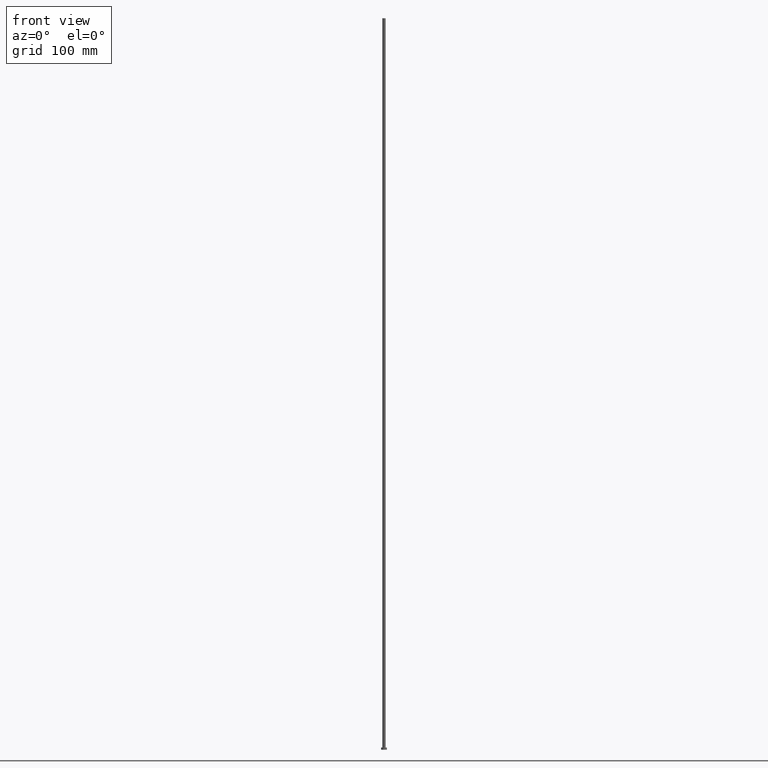
[diagram: clean part render]
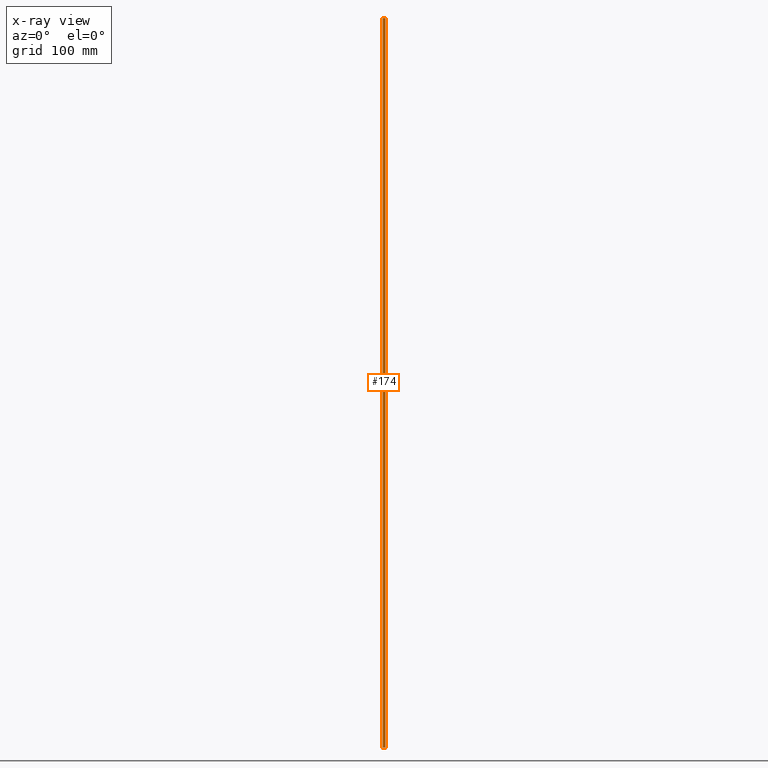
[diagram: x-ray — body ghosted, one internal face saturated and labeled with its STEP entity id]
A machine part, front view, then the same camera in x-ray: the body is ghosted and one INTERNAL B-rep face — a face not visible from any outside direction — is saturated and labeled: STEP entity #174.
In plain terms, the highlighted cylindrical surface (edge-blend (fillet) strip) has radius 2.25 mm, axis along (-0, -0, -1).
Its self-contained STEP definition (entity closure, byte-faithful):
#5 = CARTESIAN_POINT ( 'NONE',  ( 0.000000000000000000, 0.000000000000000000, 3.000000000000000000 ) ) ;
#12 = ORIENTED_EDGE ( 'NONE', *, *, #79, .T. ) ;
#19 = LINE ( 'NONE', #61, #193 ) ;
#22 = VECTOR ( 'NONE', #205, 1000.000000000000000 ) ;
#25 = CARTESIAN_POINT ( 'NONE',  ( -2.250000000000000000, 0.000000000000000000, 1000.000000000000000 ) ) ;
#48 = VERTEX_POINT ( 'NONE', #235 ) ;
#53 = AXIS2_PLACEMENT_3D ( 'NONE', #104, #80, #237 ) ;
#61 = CARTESIAN_POINT ( 'NONE',  ( 2.250000000000000000, 2.755455298081544285E-16, 1000.000000000000000 ) ) ;
#70 = EDGE_LOOP ( 'NONE', ( #142, #12, #192, #182 ) ) ;
#79 = EDGE_CURVE ( 'NONE', #170, #240, #19, .T. ) ;
#80 = DIRECTION ( 'NONE',  ( -0.000000000000000000, -0.000000000000000000, -1.000000000000000000 ) ) ;
#88 = DIRECTION ( 'NONE',  ( 0.000000000000000000, 0.000000000000000000, 1.000000000000000000 ) ) ;
#91 = AXIS2_PLACEMENT_3D ( 'NONE', #250, #221, #248 ) ;
#96 = EDGE_CURVE ( 'NONE', #170, #150, #206, .T. ) ;
#104 = CARTESIAN_POINT ( 'NONE',  ( 0.000000000000000000, 0.000000000000000000, 1000.000000000000000 ) ) ;
#109 = LINE ( 'NONE', #179, #22 ) ;
#124 = CYLINDRICAL_SURFACE ( 'NONE', #53, 2.250000000000000000 ) ;
#142 = ORIENTED_EDGE ( 'NONE', *, *, #96, .F. ) ;
#148 = DIRECTION ( 'NONE',  ( 1.000000000000000000, 0.000000000000000000, 0.000000000000000000 ) ) ;
#150 = VERTEX_POINT ( 'NONE', #25 ) ;
#167 = FACE_OUTER_BOUND ( 'NONE', #70, .T. ) ;
#170 = VERTEX_POINT ( 'NONE', #217 ) ;
#171 = CARTESIAN_POINT ( 'NONE',  ( 2.250000000000000000, 2.755455298081544285E-16, 3.000000000000000000 ) ) ;
#174 = ADVANCED_FACE ( 'NONE', ( #167 ), #124, .T. ) ;
#175 = CIRCLE ( 'NONE', #247, 2.250000000000000000 ) ;
#179 = CARTESIAN_POINT ( 'NONE',  ( -2.250000000000000000, 0.000000000000000000, 1000.000000000000000 ) ) ;
#182 = ORIENTED_EDGE ( 'NONE', *, *, #188, .F. ) ;
#188 = EDGE_CURVE ( 'NONE', #150, #48, #109, .T. ) ;
#192 = ORIENTED_EDGE ( 'NONE', *, *, #196, .T. ) ;
#193 = VECTOR ( 'NONE', #197, 1000.000000000000000 ) ;
#196 = EDGE_CURVE ( 'NONE', #240, #48, #175, .T. ) ;
#197 = DIRECTION ( 'NONE',  ( -0.000000000000000000, -0.000000000000000000, -1.000000000000000000 ) ) ;
#205 = DIRECTION ( 'NONE',  ( -0.000000000000000000, -0.000000000000000000, -1.000000000000000000 ) ) ;
#206 = CIRCLE ( 'NONE', #91, 2.250000000000000000 ) ;
#217 = CARTESIAN_POINT ( 'NONE',  ( 2.250000000000000000, 2.755455298081544285E-16, 1000.000000000000000 ) ) ;
#221 = DIRECTION ( 'NONE',  ( 0.000000000000000000, 0.000000000000000000, 1.000000000000000000 ) ) ;
#235 = CARTESIAN_POINT ( 'NONE',  ( -2.250000000000000000, 0.000000000000000000, 3.000000000000000000 ) ) ;
#237 = DIRECTION ( 'NONE',  ( -1.000000000000000000, 0.000000000000000000, 0.000000000000000000 ) ) ;
#240 = VERTEX_POINT ( 'NONE', #171 ) ;
#247 = AXIS2_PLACEMENT_3D ( 'NONE', #5, #88, #148 ) ;
#248 = DIRECTION ( 'NONE',  ( 1.000000000000000000, 0.000000000000000000, 0.000000000000000000 ) ) ;
#250 = CARTESIAN_POINT ( 'NONE',  ( 0.000000000000000000, 0.000000000000000000, 1000.000000000000000 ) ) ;